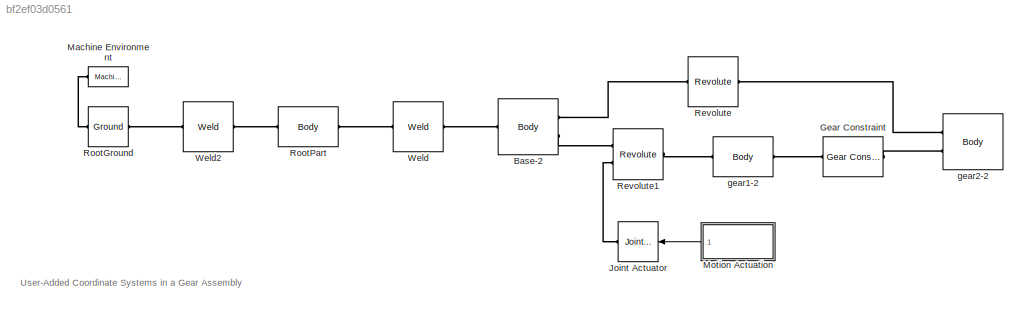
MODEL slx_bf2ef03d0561
KIND model
CONFIG AbsTol = auto
CONFIG EnableMultiTasking = on
CONFIG FixedStep = auto
CONFIG MaxStep = 0.2
CONFIG MinStep = auto
CONFIG RelTol = 1e-3
CONFIG SampleTimeConstraint = Unconstrained
CONFIG Solver = ode45
CONFIG SolverName = ode45
CONFIG StartTime = 0.0
CONFIG StopTime = 10.0
BLOCK [Reference] Base-2  REF=mblibv1/Bodies/Body
  Ports = [0, 0, 0, 0, 0, 1, 2]
  SourceBlock = mblibv1/Bodies/Body
  SourceProductBaseCode = MS
  SourceProductName = Simscape Multibody
  SourceType = Body
BLOCK [Reference] Gear Constraint  REF=mblibv1/Constraints & 
Drivers/Gear Constraint
  Ports = [0, 0, 0, 0, 0, 1, 1]
  SourceBlock = mblibv1/Constraints & \nDrivers/Gear Constraint
  SourceProductBaseCode = MS
  SourceProductName = Simscape Multibody
  SourceType = Gear Constraint
BLOCK [Reference] Joint Actuator  REF=mblibv1/Sensors & 
Actuators/Joint Actuator
  Ports = [1, 0, 0, 0, 0, 0, 1]
  SourceBlock = mblibv1/Sensors & \nActuators/Joint Actuator
  SourceProductBaseCode = MS
  SourceProductName = Simscape Multibody
  SourceType = Joint Actuator
BLOCK [Reference] Machine Environment  REF=mblibv1/Bodies/Machine
Environment
  Ports = [0, 0, 0, 0, 0, 0, 1]
  SourceBlock = mblibv1/Bodies/Machine\nEnvironment
  SourceProductBaseCode = MS
  SourceProductName = Simscape Multibody
  SourceType = Machine Environment
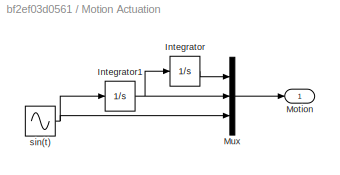
BLOCK [SubSystem] Motion Actuation
  Ports = [0, 1]
  RequestExecContextInheritance = off
BLOCK [Integrator] Motion Actuation/Integrator
  Ports = [1, 1]
BLOCK [Integrator] Motion Actuation/Integrator1
  InitialCondition = -0.25
  Ports = [1, 1]
BLOCK [Outport] Motion Actuation/Motion
  IconDisplay = Port number
BLOCK [Mux] Motion Actuation/Mux
  DisplayOption = bar
  Inputs = 3
  Ports = [3, 1]
BLOCK [Sin] Motion Actuation/sin(t)
  Amplitude = 0.5
  Ports = [0, 1]
  SampleTime = 0
BLOCK [Reference] Revolute  REF=mblibv1/Joints/Revolute
  Ports = [0, 0, 0, 0, 0, 1, 1]
  SourceBlock = mblibv1/Joints/Revolute
  SourceProductBaseCode = MS
  SourceProductName = Simscape Multibody
  SourceType = Revolute
BLOCK [Reference] Revolute1  REF=mblibv1/Joints/Revolute
  Ports = [0, 0, 0, 0, 0, 2, 1]
  SourceBlock = mblibv1/Joints/Revolute
  SourceProductBaseCode = MS
  SourceProductName = Simscape Multibody
  SourceType = Revolute
BLOCK [Reference] RootGround  REF=mblibv1/Bodies/Ground
  Ports = [0, 0, 0, 0, 0, 1, 1]
  SourceBlock = mblibv1/Bodies/Ground
  SourceProductBaseCode = MS
  SourceProductName = Simscape Multibody
  SourceType = Ground
  UserDataPersistent = on
BLOCK [Reference] RootPart  REF=mblibv1/Bodies/Body
  Ports = [0, 0, 0, 0, 0, 1, 1]
  SourceBlock = mblibv1/Bodies/Body
  SourceProductBaseCode = MS
  SourceProductName = Simscape Multibody
  SourceType = Body
BLOCK [Reference] Weld  REF=mblibv1/Joints/Weld
  Ports = [0, 0, 0, 0, 0, 1, 1]
  SourceBlock = mblibv1/Joints/Weld
  SourceProductBaseCode = MS
  SourceProductName = Simscape Multibody
  SourceType = Weld
BLOCK [Reference] Weld2  REF=mblibv1/Joints/Weld
  Ports = [0, 0, 0, 0, 0, 1, 1]
  SourceBlock = mblibv1/Joints/Weld
  SourceProductBaseCode = MS
  SourceProductName = Simscape Multibody
  SourceType = Weld
BLOCK [Reference] gear1-2  REF=mblibv1/Bodies/Body
  Ports = [0, 0, 0, 0, 0, 1, 1]
  SourceBlock = mblibv1/Bodies/Body
  SourceProductBaseCode = MS
  SourceProductName = Simscape Multibody
  SourceType = Body
BLOCK [Reference] gear2-2  REF=mblibv1/Bodies/Body
  Ports = [0, 0, 0, 0, 0, 2]
  SourceBlock = mblibv1/Bodies/Body
  SourceProductBaseCode = MS
  SourceProductName = Simscape Multibody
  SourceType = Body
ANNOTATION (root): User-Added Coordinate Systems in a Gear Assembly
NET Motion Actuation/Integrator1:1 -> Motion Actuation/Integrator:1, Motion Actuation/Mux:2
LINE Motion Actuation/Integrator:1 -> Motion Actuation/Mux:1
LINE Motion Actuation/Mux:1 -> Motion Actuation/Motion:1
NET Motion Actuation/sin(t):1 -> Motion Actuation/Integrator1:1, Motion Actuation/Mux:3
LINE Motion Actuation:1 -> Joint Actuator:1
PLINE Base-2:LConn1 -- Weld:RConn1
PLINE Base-2:RConn1 -- Revolute:LConn1
PLINE Base-2:RConn2 -- Revolute1:LConn1
PLINE Gear Constraint:LConn1 -- gear1-2:RConn1
PLINE Gear Constraint:RConn1 -- gear2-2:LConn2
PLINE Joint Actuator:RConn1 -- Revolute1:LConn2
PLINE Machine Environment:RConn1 -- RootGround:LConn1
PLINE Revolute1:RConn1 -- gear1-2:LConn1
PLINE Revolute:RConn1 -- gear2-2:LConn1
PLINE RootGround:RConn1 -- Weld2:LConn1
PLINE RootPart:LConn1 -- Weld2:RConn1
PLINE RootPart:RConn1 -- Weld:LConn1
note: NET lines group one-source signal fan-out (src -> all destinations, sorted); 1:1 wires keep LINE
